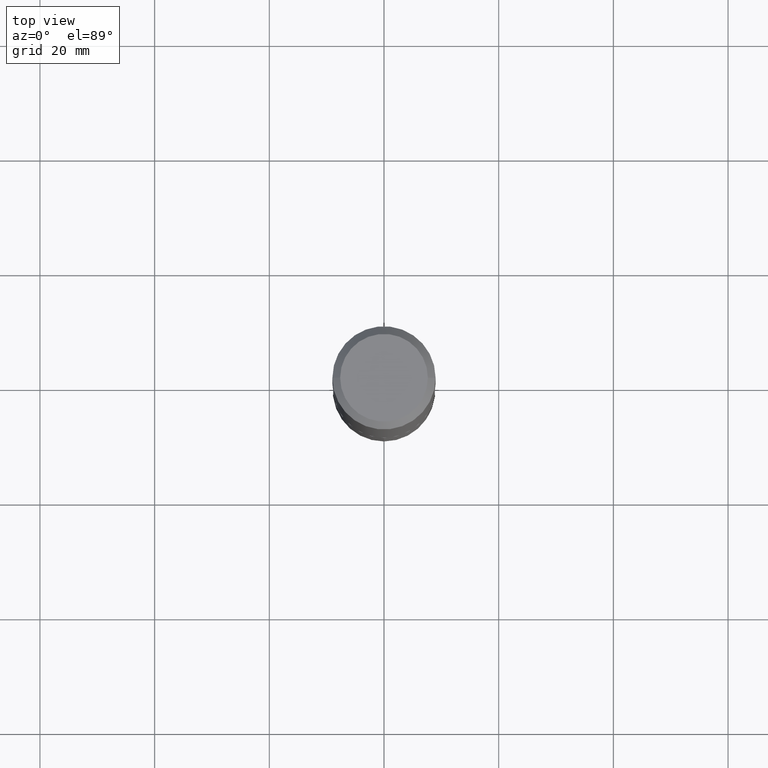
[diagram: clean part render]
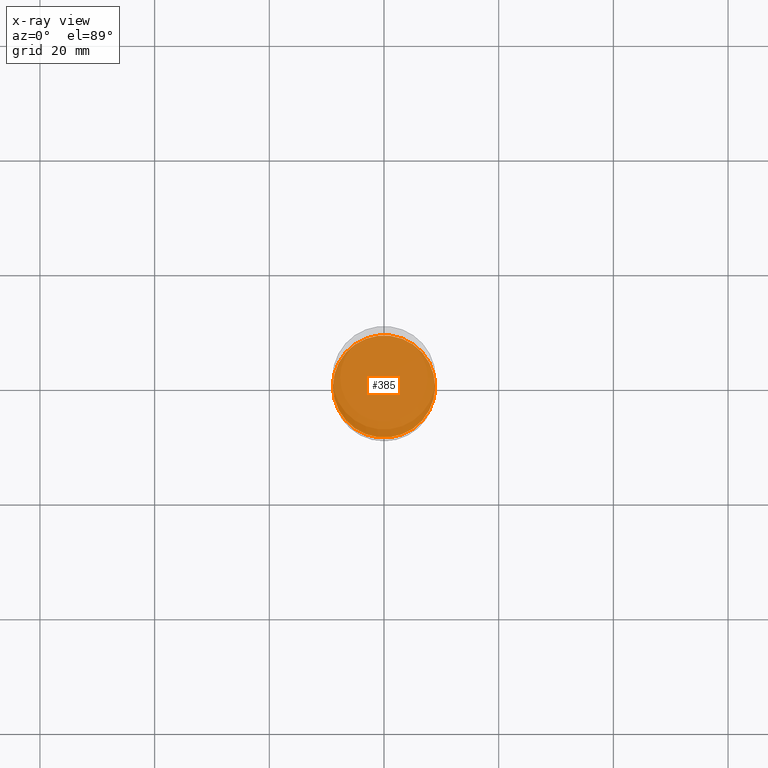
[diagram: x-ray — body ghosted, one internal face saturated and labeled with its STEP entity id]
A machine part, top view, then the same camera in x-ray: the body is ghosted and one INTERNAL B-rep face — a face not visible from any outside direction — is saturated and labeled: STEP entity #385.
In plain terms, the highlighted planar face has unit normal (-0, 0, 1).
Its self-contained STEP definition (entity closure, byte-faithful):
#17 = AXIS2_PLACEMENT_3D ( 'NONE', #261, #208, #28 ) ;
#24 = CARTESIAN_POINT ( 'NONE',  ( 0.3510500000000000287, -1.469704154772632696E-14, -3.507299999999999862 ) ) ;
#28 = DIRECTION ( 'NONE',  ( 1.000000000000000000, -6.982962677686265922E-15, 4.876176775795935793E-29 ) ) ;
#67 = PLANE ( 'NONE',  #17 ) ;
#132 = CARTESIAN_POINT ( 'NONE',  ( 8.576992743933130300E-29, -1.224567249972456408E-14, -3.507299999999999862 ) ) ;
#152 = EDGE_CURVE ( 'NONE', #399, #287, #354, .T. ) ;
#195 = DIRECTION ( 'NONE',  ( 1.000000000000000000, -6.982962677686266711E-15, 0.000000000000000000 ) ) ;
#208 = DIRECTION ( 'NONE',  ( -2.438088387897960049E-29, 3.491481338843145188E-15, 1.000000000000000000 ) ) ;
#213 = DIRECTION ( 'NONE',  ( 1.000000000000000000, -6.982962677686266711E-15, 0.000000000000000000 ) ) ;
#239 = ORIENTED_EDGE ( 'NONE', *, *, #403, .F. ) ;
#249 = CARTESIAN_POINT ( 'NONE',  ( 8.576992743933130300E-29, -1.224567249972456408E-14, -3.507299999999999862 ) ) ;
#261 = CARTESIAN_POINT ( 'NONE',  ( 8.576992743933130300E-29, -1.224567249972456408E-14, -3.507299999999999862 ) ) ;
#287 = VERTEX_POINT ( 'NONE', #417 ) ;
#331 = AXIS2_PLACEMENT_3D ( 'NONE', #249, #450, #195 ) ;
#332 = CIRCLE ( 'NONE', #411, 0.3510500000000000287 ) ;
#354 = CIRCLE ( 'NONE', #331, 0.3510500000000000287 ) ;
#385 = ADVANCED_FACE ( 'NONE', ( #390 ), #67, .F. ) ;
#390 = FACE_OUTER_BOUND ( 'NONE', #468, .T. ) ;
#399 = VERTEX_POINT ( 'NONE', #24 ) ;
#403 = EDGE_CURVE ( 'NONE', #287, #399, #332, .T. ) ;
#411 = AXIS2_PLACEMENT_3D ( 'NONE', #132, #420, #213 ) ;
#417 = CARTESIAN_POINT ( 'NONE',  ( -0.3510500000000000287, -9.748662998664619792E-15, -3.507299999999999862 ) ) ;
#420 = DIRECTION ( 'NONE',  ( -2.445468806185136597E-29, 3.491481338843145583E-15, 1.000000000000000000 ) ) ;
#422 = ORIENTED_EDGE ( 'NONE', *, *, #152, .F. ) ;
#450 = DIRECTION ( 'NONE',  ( -2.445468806185136597E-29, 3.491481338843145583E-15, 1.000000000000000000 ) ) ;
#468 = EDGE_LOOP ( 'NONE', ( #422, #239 ) ) ;